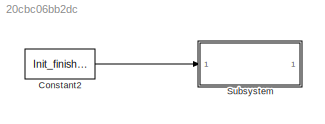
MODEL slx_20cbc06bb2dc
KIND model
CONFIG AbsTol = auto
CONFIG EnableMultiTasking = off
CONFIG FixedStep = auto
CONFIG MaxStep = 0.01
CONFIG MinStep = auto
CONFIG RelTol = 1e-3
CONFIG SampleTimeConstraint = Unconstrained
CONFIG SolverName = VariableStepAuto
CONFIG StartTime = 0.0
CONFIG StopTime = 10.0
BLOCK [Constant] Constant2
  Value = Init_finished
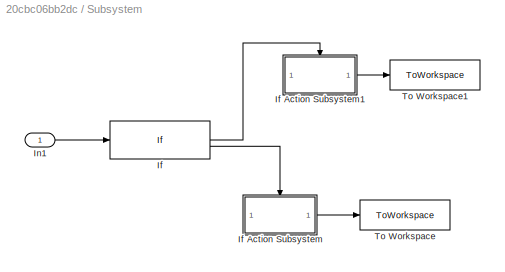
BLOCK [SubSystem] Subsystem
BLOCK [If] Subsystem/If
  IfExpression = u1 == 1
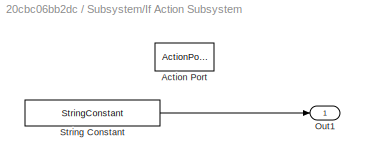
BLOCK [SubSystem] Subsystem/If Action Subsystem
  TreatAsAtomicUnit = on
BLOCK [ActionPort] Subsystem/If Action Subsystem/Action Port
  ActionPortLabel = else
BLOCK [Outport] Subsystem/If Action Subsystem/Out1
BLOCK [StringConstant] Subsystem/If Action Subsystem/String Constant
  String = "Initialization is not finished"
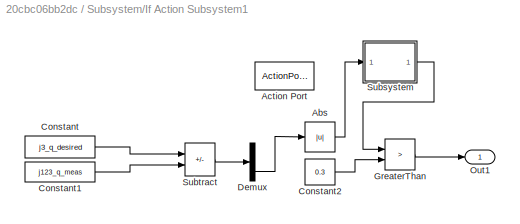
BLOCK [SubSystem] Subsystem/If Action Subsystem1
  TreatAsAtomicUnit = on
BLOCK [Abs] Subsystem/If Action Subsystem1/Abs
  SaturateOnIntegerOverflow = off
BLOCK [ActionPort] Subsystem/If Action Subsystem1/Action Port
  ActionPortLabel = if(u1 == 1)
BLOCK [Constant] Subsystem/If Action Subsystem1/Constant
  Value = j3_q_desired
BLOCK [Constant] Subsystem/If Action Subsystem1/Constant1
  Value = j123_q_meas
BLOCK [Constant] Subsystem/If Action Subsystem1/Constant2
  Value = 0.3
BLOCK [Demux] Subsystem/If Action Subsystem1/Demux
  Outputs = 3
BLOCK [RelationalOperator] Subsystem/If Action Subsystem1/GreaterThan
  InputSameDT = off
  Operator = >
  OutDataTypeStr = boolean
  RndMeth = Simplest
BLOCK [Outport] Subsystem/If Action Subsystem1/Out1
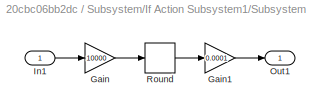
BLOCK [SubSystem] Subsystem/If Action Subsystem1/Subsystem
BLOCK [Gain] Subsystem/If Action Subsystem1/Subsystem/Gain
  Gain = 10000
BLOCK [Gain] Subsystem/If Action Subsystem1/Subsystem/Gain1
  Gain = 0.0001
BLOCK [Inport] Subsystem/If Action Subsystem1/Subsystem/In1
BLOCK [Outport] Subsystem/If Action Subsystem1/Subsystem/Out1
BLOCK [Rounding] Subsystem/If Action Subsystem1/Subsystem/Round
  Operator = round
BLOCK [Sum] Subsystem/If Action Subsystem1/Subtract
  IconShape = rectangular
  Inputs = -+
BLOCK [Inport] Subsystem/In1
BLOCK [ToWorkspace] Subsystem/To Workspace
  FixptAsFi = on
  MaxDataPoints = inf
  SampleTime = -1
  VariableName = Error
BLOCK [ToWorkspace] Subsystem/To Workspace1
  FixptAsFi = on
  MaxDataPoints = inf
  SampleTime = -1
  VariableName = j3_failure
LINE Constant2:1 -> Subsystem:1
LINE Subsystem/If Action Subsystem/String Constant:1 -> Subsystem/If Action Subsystem/Out1:1
LINE Subsystem/If Action Subsystem1/Abs:1 -> Subsystem/If Action Subsystem1/Subsystem:1
LINE Subsystem/If Action Subsystem1/Constant1:1 -> Subsystem/If Action Subsystem1/Subtract:2
LINE Subsystem/If Action Subsystem1/Constant2:1 -> Subsystem/If Action Subsystem1/GreaterThan:2
LINE Subsystem/If Action Subsystem1/Constant:1 -> Subsystem/If Action Subsystem1/Subtract:1
LINE Subsystem/If Action Subsystem1/Demux:3 -> Subsystem/If Action Subsystem1/Abs:1
LINE Subsystem/If Action Subsystem1/GreaterThan:1 -> Subsystem/If Action Subsystem1/Out1:1
LINE Subsystem/If Action Subsystem1/Subsystem/Gain1:1 -> Subsystem/If Action Subsystem1/Subsystem/Out1:1
LINE Subsystem/If Action Subsystem1/Subsystem/Gain:1 -> Subsystem/If Action Subsystem1/Subsystem/Round:1
LINE Subsystem/If Action Subsystem1/Subsystem/In1:1 -> Subsystem/If Action Subsystem1/Subsystem/Gain:1
LINE Subsystem/If Action Subsystem1/Subsystem/Round:1 -> Subsystem/If Action Subsystem1/Subsystem/Gain1:1
LINE Subsystem/If Action Subsystem1/Subsystem:1 -> Subsystem/If Action Subsystem1/GreaterThan:1
LINE Subsystem/If Action Subsystem1/Subtract:1 -> Subsystem/If Action Subsystem1/Demux:1
LINE Subsystem/If Action Subsystem1:1 -> Subsystem/To Workspace1:1
LINE Subsystem/If Action Subsystem:1 -> Subsystem/To Workspace:1
LINE Subsystem/If:1 -> Subsystem/If Action Subsystem1:ifaction
LINE Subsystem/If:2 -> Subsystem/If Action Subsystem:ifaction
LINE Subsystem/In1:1 -> Subsystem/If:1
